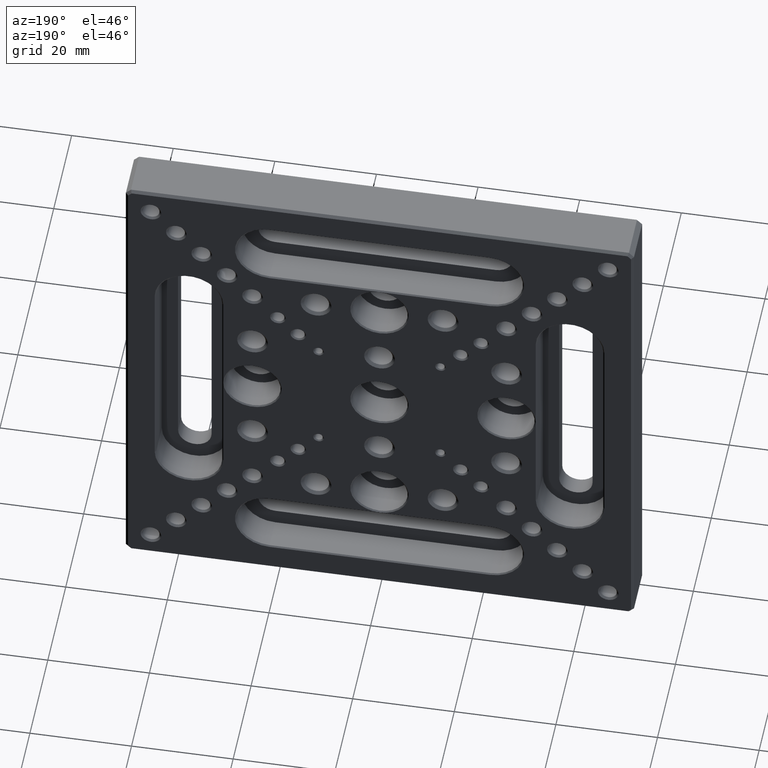
[diagram: clean part render]
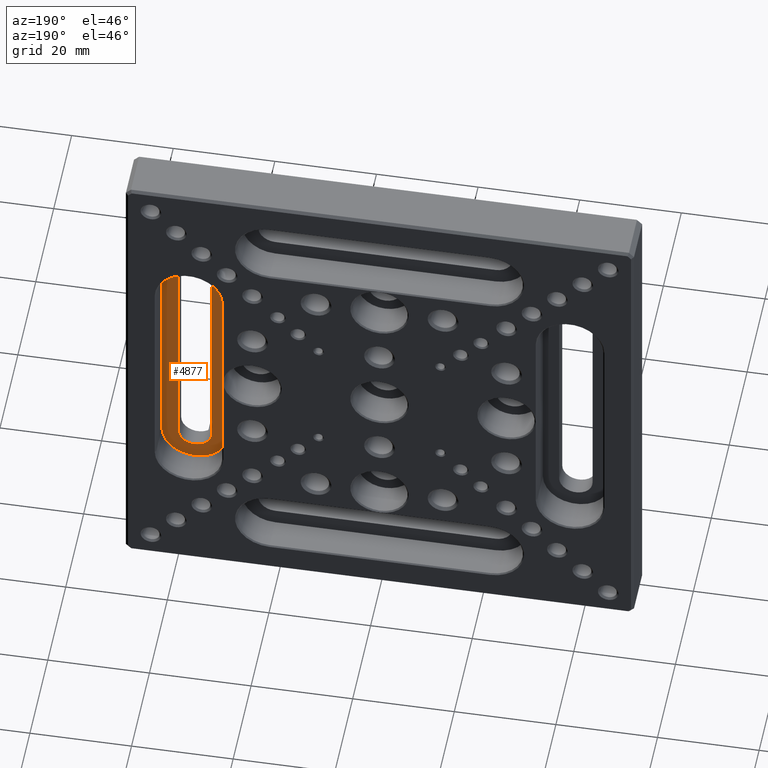
[diagram: same view with one face highlighted and labeled with its STEP entity id]
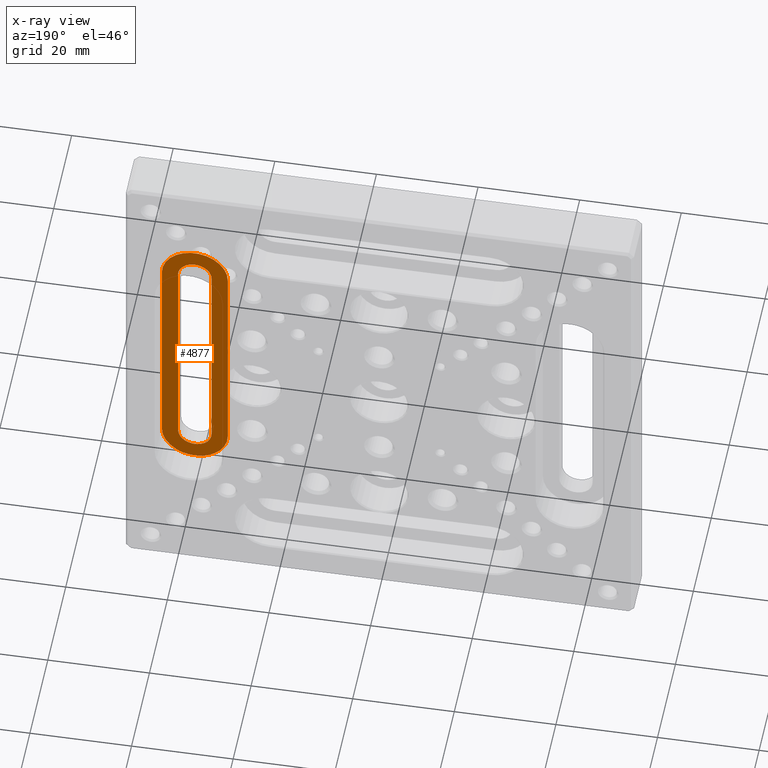
[diagram: x-ray of the same camera — body ghosted, the highlighted face saturated]
A machine part, auxiliary view. The second image highlights one B-rep face of the part: STEP entity #4877.
The next image is the same camera in x-ray: the body ghosted, the highlighted face saturated — about 0% of this face is hidden behind the body in this view.
In plain terms, the highlighted planar face has unit normal (0, 1, 0).
Its self-contained STEP definition (entity closure, byte-faithful):
#18 = DIRECTION ( 'NONE',  ( -0.000000000000000000, -1.000000000000000000, -0.000000000000000000 ) ) ;
#49 = AXIS2_PLACEMENT_3D ( 'NONE', #3203, #18, #2019 ) ;
#103 = VERTEX_POINT ( 'NONE', #2657 ) ;
#110 = ORIENTED_EDGE ( 'NONE', *, *, #1740, .T. ) ;
#113 = CIRCLE ( 'NONE', #287, 3.299999999999997158 ) ;
#259 = VERTEX_POINT ( 'NONE', #664 ) ;
#287 = AXIS2_PLACEMENT_3D ( 'NONE', #4046, #554, #2094 ) ;
#298 = VECTOR ( 'NONE', #1605, 1000.000000000000000 ) ;
#341 = ORIENTED_EDGE ( 'NONE', *, *, #2817, .T. ) ;
#369 = CARTESIAN_POINT ( 'NONE',  ( 37.50000000000000711, 3.499999999999999556, 21.69999999999999929 ) ) ;
#372 = VECTOR ( 'NONE', #2525, 1000.000000000000000 ) ;
#554 = DIRECTION ( 'NONE',  ( -0.000000000000000000, -1.000000000000000000, -0.000000000000000000 ) ) ;
#591 = DIRECTION ( 'NONE',  ( 0.000000000000000000, 1.000000000000000000, 0.000000000000000000 ) ) ;
#613 = PLANE ( 'NONE',  #3636 ) ;
#664 = CARTESIAN_POINT ( 'NONE',  ( 44.00000000000000711, 3.499999999999999556, 21.69999999999999929 ) ) ;
#665 = CARTESIAN_POINT ( 'NONE',  ( 37.50000000000000711, 3.499999999999999556, -21.70000000000001350 ) ) ;
#1176 = ORIENTED_EDGE ( 'NONE', *, *, #4970, .T. ) ;
#1255 = ORIENTED_EDGE ( 'NONE', *, *, #2144, .T. ) ;
#1555 = CARTESIAN_POINT ( 'NONE',  ( 40.80000000000000426, 3.499999999999999556, -21.69999999999999929 ) ) ;
#1605 = DIRECTION ( 'NONE',  ( -0.000000000000000000, -0.000000000000000000, -1.000000000000000000 ) ) ;
#1674 = EDGE_CURVE ( 'NONE', #2384, #4055, #3190, .T. ) ;
#1704 = VERTEX_POINT ( 'NONE', #4516 ) ;
#1737 = CARTESIAN_POINT ( 'NONE',  ( 31.00000000000000711, 3.499999999999999556, -21.70000000000001350 ) ) ;
#1740 = EDGE_CURVE ( 'NONE', #4055, #259, #4856, .T. ) ;
#1748 = VERTEX_POINT ( 'NONE', #1555 ) ;
#1782 = DIRECTION ( 'NONE',  ( 0.000000000000000000, 1.000000000000000000, 0.000000000000000000 ) ) ;
#1838 = DIRECTION ( 'NONE',  ( 0.000000000000000000, 0.000000000000000000, -1.000000000000000000 ) ) ;
#1852 = EDGE_CURVE ( 'NONE', #259, #1704, #3627, .T. ) ;
#1906 = ORIENTED_EDGE ( 'NONE', *, *, #2242, .T. ) ;
#1914 = DIRECTION ( 'NONE',  ( 0.000000000000000000, 0.000000000000000000, 1.000000000000000000 ) ) ;
#1968 = CARTESIAN_POINT ( 'NONE',  ( 34.20000000000000995, 3.499999999999999556, 21.69999999999999929 ) ) ;
#2019 = DIRECTION ( 'NONE',  ( 0.000000000000000000, 0.000000000000000000, 1.000000000000000000 ) ) ;
#2094 = DIRECTION ( 'NONE',  ( 0.000000000000000000, 0.000000000000000000, 1.000000000000000000 ) ) ;
#2129 = DIRECTION ( 'NONE',  ( 0.000000000000000000, 0.000000000000000000, 1.000000000000000000 ) ) ;
#2144 = EDGE_CURVE ( 'NONE', #2537, #2759, #113, .T. ) ;
#2148 = VECTOR ( 'NONE', #1838, 1000.000000000000000 ) ;
#2232 = AXIS2_PLACEMENT_3D ( 'NONE', #369, #3000, #1914 ) ;
#2242 = EDGE_CURVE ( 'NONE', #2759, #103, #2618, .T. ) ;
#2319 = AXIS2_PLACEMENT_3D ( 'NONE', #4087, #591, #2129 ) ;
#2322 = CIRCLE ( 'NONE', #49, 3.299999999999997158 ) ;
#2361 = CARTESIAN_POINT ( 'NONE',  ( 44.00000000000000711, 3.499999999999999556, -21.70000000000001350 ) ) ;
#2384 = VERTEX_POINT ( 'NONE', #2784 ) ;
#2525 = DIRECTION ( 'NONE',  ( 0.000000000000000000, 0.000000000000000000, 1.000000000000000000 ) ) ;
#2537 = VERTEX_POINT ( 'NONE', #3700 ) ;
#2598 = CARTESIAN_POINT ( 'NONE',  ( 31.00000000000000711, 3.499999999999999556, 21.69999999999999929 ) ) ;
#2618 = LINE ( 'NONE', #3034, #2148 ) ;
#2657 = CARTESIAN_POINT ( 'NONE',  ( 34.20000000000000995, 3.499999999999999556, -21.69999999999999929 ) ) ;
#2743 = ORIENTED_EDGE ( 'NONE', *, *, #4480, .T. ) ;
#2759 = VERTEX_POINT ( 'NONE', #1968 ) ;
#2784 = CARTESIAN_POINT ( 'NONE',  ( 31.00000000000000711, 3.499999999999999556, -21.70000000000001350 ) ) ;
#2817 = EDGE_CURVE ( 'NONE', #103, #1748, #2322, .T. ) ;
#3000 = DIRECTION ( 'NONE',  ( 0.000000000000000000, 1.000000000000000000, 0.000000000000000000 ) ) ;
#3003 = FACE_BOUND ( 'NONE', #3240, .T. ) ;
#3034 = CARTESIAN_POINT ( 'NONE',  ( 34.20000000000000995, 3.499999999999999556, -21.69999999999999929 ) ) ;
#3190 = LINE ( 'NONE', #1737, #372 ) ;
#3203 = CARTESIAN_POINT ( 'NONE',  ( 37.50000000000000711, 3.499999999999999556, -21.69999999999999929 ) ) ;
#3240 = EDGE_LOOP ( 'NONE', ( #341, #2743, #1255, #1906 ) ) ;
#3393 = VECTOR ( 'NONE', #4978, 1000.000000000000000 ) ;
#3559 = ORIENTED_EDGE ( 'NONE', *, *, #1852, .T. ) ;
#3627 = LINE ( 'NONE', #2361, #298 ) ;
#3636 = AXIS2_PLACEMENT_3D ( 'NONE', #665, #1782, #4112 ) ;
#3700 = CARTESIAN_POINT ( 'NONE',  ( 40.80000000000000426, 3.499999999999999556, 21.69999999999999929 ) ) ;
#4046 = CARTESIAN_POINT ( 'NONE',  ( 37.50000000000000711, 3.499999999999999556, 21.69999999999999929 ) ) ;
#4055 = VERTEX_POINT ( 'NONE', #2598 ) ;
#4087 = CARTESIAN_POINT ( 'NONE',  ( 37.50000000000000711, 3.499999999999999556, -21.70000000000001350 ) ) ;
#4112 = DIRECTION ( 'NONE',  ( 0.000000000000000000, -0.000000000000000000, 1.000000000000000000 ) ) ;
#4293 = CIRCLE ( 'NONE', #2319, 6.499999999999999112 ) ;
#4480 = EDGE_CURVE ( 'NONE', #1748, #2537, #4926, .T. ) ;
#4490 = ORIENTED_EDGE ( 'NONE', *, *, #1674, .T. ) ;
#4516 = CARTESIAN_POINT ( 'NONE',  ( 44.00000000000000711, 3.499999999999999556, -21.70000000000001350 ) ) ;
#4518 = FACE_OUTER_BOUND ( 'NONE', #4886, .T. ) ;
#4553 = CARTESIAN_POINT ( 'NONE',  ( 40.80000000000000426, 3.499999999999999556, -21.69999999999999929 ) ) ;
#4856 = CIRCLE ( 'NONE', #2232, 6.499999999999999112 ) ;
#4877 = ADVANCED_FACE ( 'NONE', ( #4518, #3003 ), #613, .T. ) ;
#4886 = EDGE_LOOP ( 'NONE', ( #1176, #4490, #110, #3559 ) ) ;
#4926 = LINE ( 'NONE', #4553, #3393 ) ;
#4970 = EDGE_CURVE ( 'NONE', #1704, #2384, #4293, .T. ) ;
#4978 = DIRECTION ( 'NONE',  ( 0.000000000000000000, -0.000000000000000000, 1.000000000000000000 ) ) ;